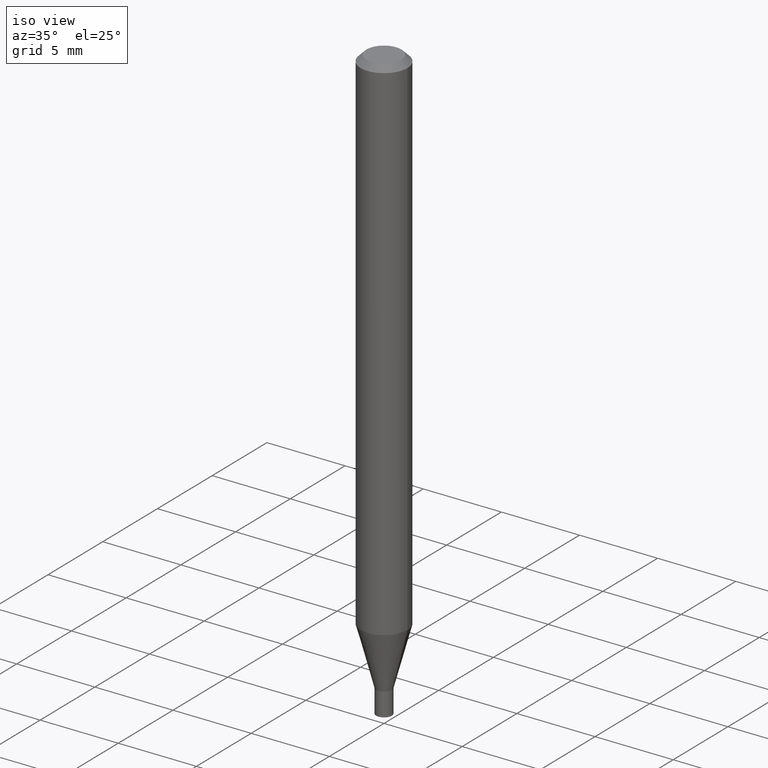
[diagram: clean part render]
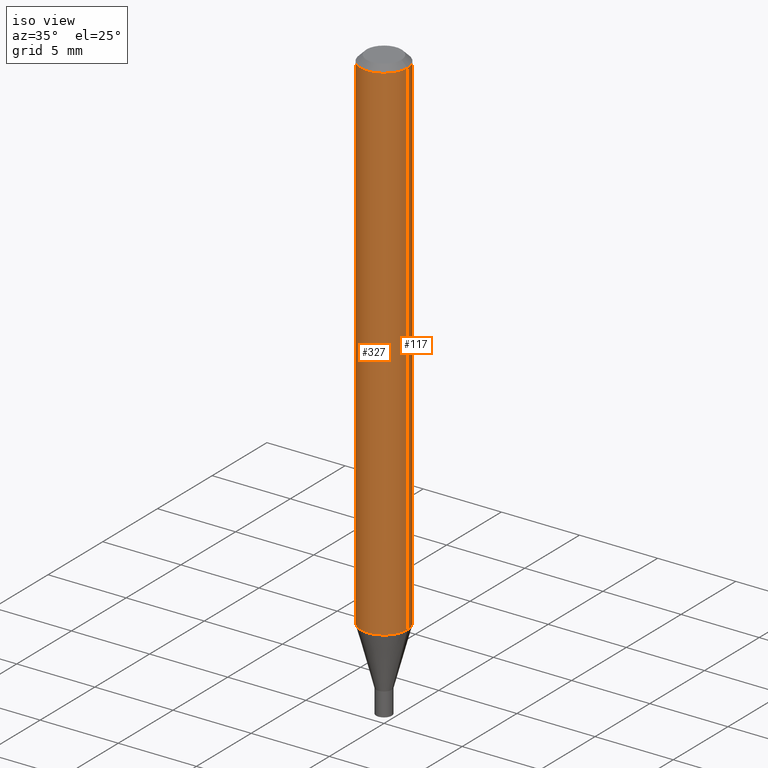
[diagram: same view with one multi-face feature highlighted, each face labeled with its STEP entity id]
A machine part, iso view. The highlighted faces form ONE feature: a constant-radius fillet chain: 2 tangent blend faces with common blend radius 1.4999 mm. The faces share edges in the B-rep.
Their STEP definitions:
[1] entity #117 (Cylinder):
#5 = LINE ( 'NONE', #403, #286 ) ;
#8 = CARTESIAN_POINT ( 'NONE',  ( -0.05904999999999999832, 4.195754854663391478E-16, -2.904631170795521892E-30 ) ) ;
#49 = CARTESIAN_POINT ( 'NONE',  ( 0.05904999999999999832, -4.647161662000212105E-16, -0.01499999999999999944 ) ) ;
#56 = DIRECTION ( 'NONE',  ( 1.000000000000000000, -6.982962677686266711E-15, 0.000000000000000000 ) ) ;
#58 = CARTESIAN_POINT ( 'NONE',  ( 3.668203209277705088E-31, -5.237222008264718399E-17, -0.01499999999999999944 ) ) ;
#63 = VERTEX_POINT ( 'NONE', #71 ) ;
#64 = AXIS2_PLACEMENT_3D ( 'NONE', #287, #252, #352 ) ;
#70 = DIRECTION ( 'NONE',  ( -2.445468806185136597E-29, 3.491481338843145583E-15, 1.000000000000000000 ) ) ;
#71 = CARTESIAN_POINT ( 'NONE',  ( -0.05904999999999999832, -1.865675515508531289E-15, -0.01499999999999999944 ) ) ;
#81 = LINE ( 'NONE', #8, #254 ) ;
#84 = AXIS2_PLACEMENT_3D ( 'NONE', #58, #331, #56 ) ;
#91 = CIRCLE ( 'NONE', #459, 0.05904999999999999832 ) ;
#99 = ORIENTED_EDGE ( 'NONE', *, *, #404, .F. ) ;
#108 = VERTEX_POINT ( 'NONE', #406 ) ;
#117 = ADVANCED_FACE ( 'NONE', ( #121 ), #427, .T. ) ;
#121 = FACE_OUTER_BOUND ( 'NONE', #340, .T. ) ;
#126 = DIRECTION ( 'NONE',  ( -2.445468806185136877E-29, 3.491481338843145188E-15, 1.000000000000000000 ) ) ;
#142 = VERTEX_POINT ( 'NONE', #241 ) ;
#152 = DIRECTION ( 'NONE',  ( -2.445468806185136877E-29, 3.491481338843145188E-15, 1.000000000000000000 ) ) ;
#156 = EDGE_CURVE ( 'NONE', #142, #108, #91, .T. ) ;
#201 = ORIENTED_EDGE ( 'NONE', *, *, #202, .T. ) ;
#202 = EDGE_CURVE ( 'NONE', #108, #63, #81, .T. ) ;
#226 = VERTEX_POINT ( 'NONE', #49 ) ;
#241 = CARTESIAN_POINT ( 'NONE',  ( 0.05905000000000000526, -4.930473727984467433E-15, -1.294043800722163962 ) ) ;
#244 = EDGE_CURVE ( 'NONE', #142, #226, #5, .T. ) ;
#252 = DIRECTION ( 'NONE',  ( -2.445468806185136597E-29, 3.491481338843145583E-15, 1.000000000000000000 ) ) ;
#254 = VECTOR ( 'NONE', #152, 39.37007874015748143 ) ;
#286 = VECTOR ( 'NONE', #126, 39.37007874015748143 ) ;
#287 = CARTESIAN_POINT ( 'NONE',  ( 0.000000000000000000, 0.000000000000000000, 0.000000000000000000 ) ) ;
#328 = ORIENTED_EDGE ( 'NONE', *, *, #156, .T. ) ;
#331 = DIRECTION ( 'NONE',  ( -2.445468806185136597E-29, 3.491481338843145583E-15, 1.000000000000000000 ) ) ;
#340 = EDGE_LOOP ( 'NONE', ( #328, #201, #99, #411 ) ) ;
#348 = DIRECTION ( 'NONE',  ( 1.000000000000000000, -6.982962677686273021E-15, 0.000000000000000000 ) ) ;
#352 = DIRECTION ( 'NONE',  ( 1.000000000000000000, -6.982962677686266711E-15, 4.876176775795936353E-29 ) ) ;
#394 = CARTESIAN_POINT ( 'NONE',  ( 3.164543748503307071E-29, -4.518129781867094090E-15, -1.294043800722163962 ) ) ;
#403 = CARTESIAN_POINT ( 'NONE',  ( 0.05904999999999999832, -4.123439461173740327E-16, 2.879382386107500220E-30 ) ) ;
#404 = EDGE_CURVE ( 'NONE', #226, #63, #407, .T. ) ;
#406 = CARTESIAN_POINT ( 'NONE',  ( -0.05905000000000000526, -4.098554296400754597E-15, -1.294043800722163962 ) ) ;
#407 = CIRCLE ( 'NONE', #84, 0.05904999999999999832 ) ;
#411 = ORIENTED_EDGE ( 'NONE', *, *, #244, .F. ) ;
#427 = CYLINDRICAL_SURFACE ( 'NONE', #64, 0.05904999999999999832 ) ;
#459 = AXIS2_PLACEMENT_3D ( 'NONE', #394, #70, #348 ) ;
[2] entity #327 (Cylinder):
#4 = AXIS2_PLACEMENT_3D ( 'NONE', #107, #227, #297 ) ;
#5 = LINE ( 'NONE', #403, #286 ) ;
#8 = CARTESIAN_POINT ( 'NONE',  ( -0.05904999999999999832, 4.195754854663391478E-16, -2.904631170795521892E-30 ) ) ;
#14 = CIRCLE ( 'NONE', #325, 0.05904999999999999832 ) ;
#37 = ORIENTED_EDGE ( 'NONE', *, *, #202, .F. ) ;
#49 = CARTESIAN_POINT ( 'NONE',  ( 0.05904999999999999832, -4.647161662000212105E-16, -0.01499999999999999944 ) ) ;
#63 = VERTEX_POINT ( 'NONE', #71 ) ;
#66 = ORIENTED_EDGE ( 'NONE', *, *, #255, .T. ) ;
#71 = CARTESIAN_POINT ( 'NONE',  ( -0.05904999999999999832, -1.865675515508531289E-15, -0.01499999999999999944 ) ) ;
#81 = LINE ( 'NONE', #8, #254 ) ;
#89 = CARTESIAN_POINT ( 'NONE',  ( 3.164543748503307071E-29, -4.518129781867094090E-15, -1.294043800722163962 ) ) ;
#107 = CARTESIAN_POINT ( 'NONE',  ( 0.000000000000000000, 0.000000000000000000, 0.000000000000000000 ) ) ;
#108 = VERTEX_POINT ( 'NONE', #406 ) ;
#126 = DIRECTION ( 'NONE',  ( -2.445468806185136877E-29, 3.491481338843145188E-15, 1.000000000000000000 ) ) ;
#130 = EDGE_CURVE ( 'NONE', #63, #226, #14, .T. ) ;
#134 = ORIENTED_EDGE ( 'NONE', *, *, #244, .T. ) ;
#142 = VERTEX_POINT ( 'NONE', #241 ) ;
#152 = DIRECTION ( 'NONE',  ( -2.445468806185136877E-29, 3.491481338843145188E-15, 1.000000000000000000 ) ) ;
#157 = DIRECTION ( 'NONE',  ( -2.445468806185136597E-29, 3.491481338843145583E-15, 1.000000000000000000 ) ) ;
#202 = EDGE_CURVE ( 'NONE', #108, #63, #81, .T. ) ;
#226 = VERTEX_POINT ( 'NONE', #49 ) ;
#227 = DIRECTION ( 'NONE',  ( -2.445468806185136597E-29, 3.491481338843145583E-15, 1.000000000000000000 ) ) ;
#241 = CARTESIAN_POINT ( 'NONE',  ( 0.05905000000000000526, -4.930473727984467433E-15, -1.294043800722163962 ) ) ;
#244 = EDGE_CURVE ( 'NONE', #142, #226, #5, .T. ) ;
#246 = CARTESIAN_POINT ( 'NONE',  ( 3.668203209277705088E-31, -5.237222008264718399E-17, -0.01499999999999999944 ) ) ;
#249 = DIRECTION ( 'NONE',  ( -2.445468806185136597E-29, 3.491481338843145583E-15, 1.000000000000000000 ) ) ;
#254 = VECTOR ( 'NONE', #152, 39.37007874015748143 ) ;
#255 = EDGE_CURVE ( 'NONE', #108, #142, #260, .T. ) ;
#260 = CIRCLE ( 'NONE', #306, 0.05904999999999999832 ) ;
#286 = VECTOR ( 'NONE', #126, 39.37007874015748143 ) ;
#297 = DIRECTION ( 'NONE',  ( 1.000000000000000000, -6.982962677686266711E-15, 4.876176775795936353E-29 ) ) ;
#299 = EDGE_LOOP ( 'NONE', ( #37, #66, #134, #367 ) ) ;
#306 = AXIS2_PLACEMENT_3D ( 'NONE', #89, #157, #405 ) ;
#320 = DIRECTION ( 'NONE',  ( 1.000000000000000000, -6.982962677686266711E-15, 0.000000000000000000 ) ) ;
#325 = AXIS2_PLACEMENT_3D ( 'NONE', #246, #249, #320 ) ;
#327 = ADVANCED_FACE ( 'NONE', ( #417 ), #419, .T. ) ;
#367 = ORIENTED_EDGE ( 'NONE', *, *, #130, .F. ) ;
#403 = CARTESIAN_POINT ( 'NONE',  ( 0.05904999999999999832, -4.123439461173740327E-16, 2.879382386107500220E-30 ) ) ;
#405 = DIRECTION ( 'NONE',  ( 1.000000000000000000, -6.982962677686273021E-15, 0.000000000000000000 ) ) ;
#406 = CARTESIAN_POINT ( 'NONE',  ( -0.05905000000000000526, -4.098554296400754597E-15, -1.294043800722163962 ) ) ;
#417 = FACE_OUTER_BOUND ( 'NONE', #299, .T. ) ;
#419 = CYLINDRICAL_SURFACE ( 'NONE', #4, 0.05904999999999999832 ) ;